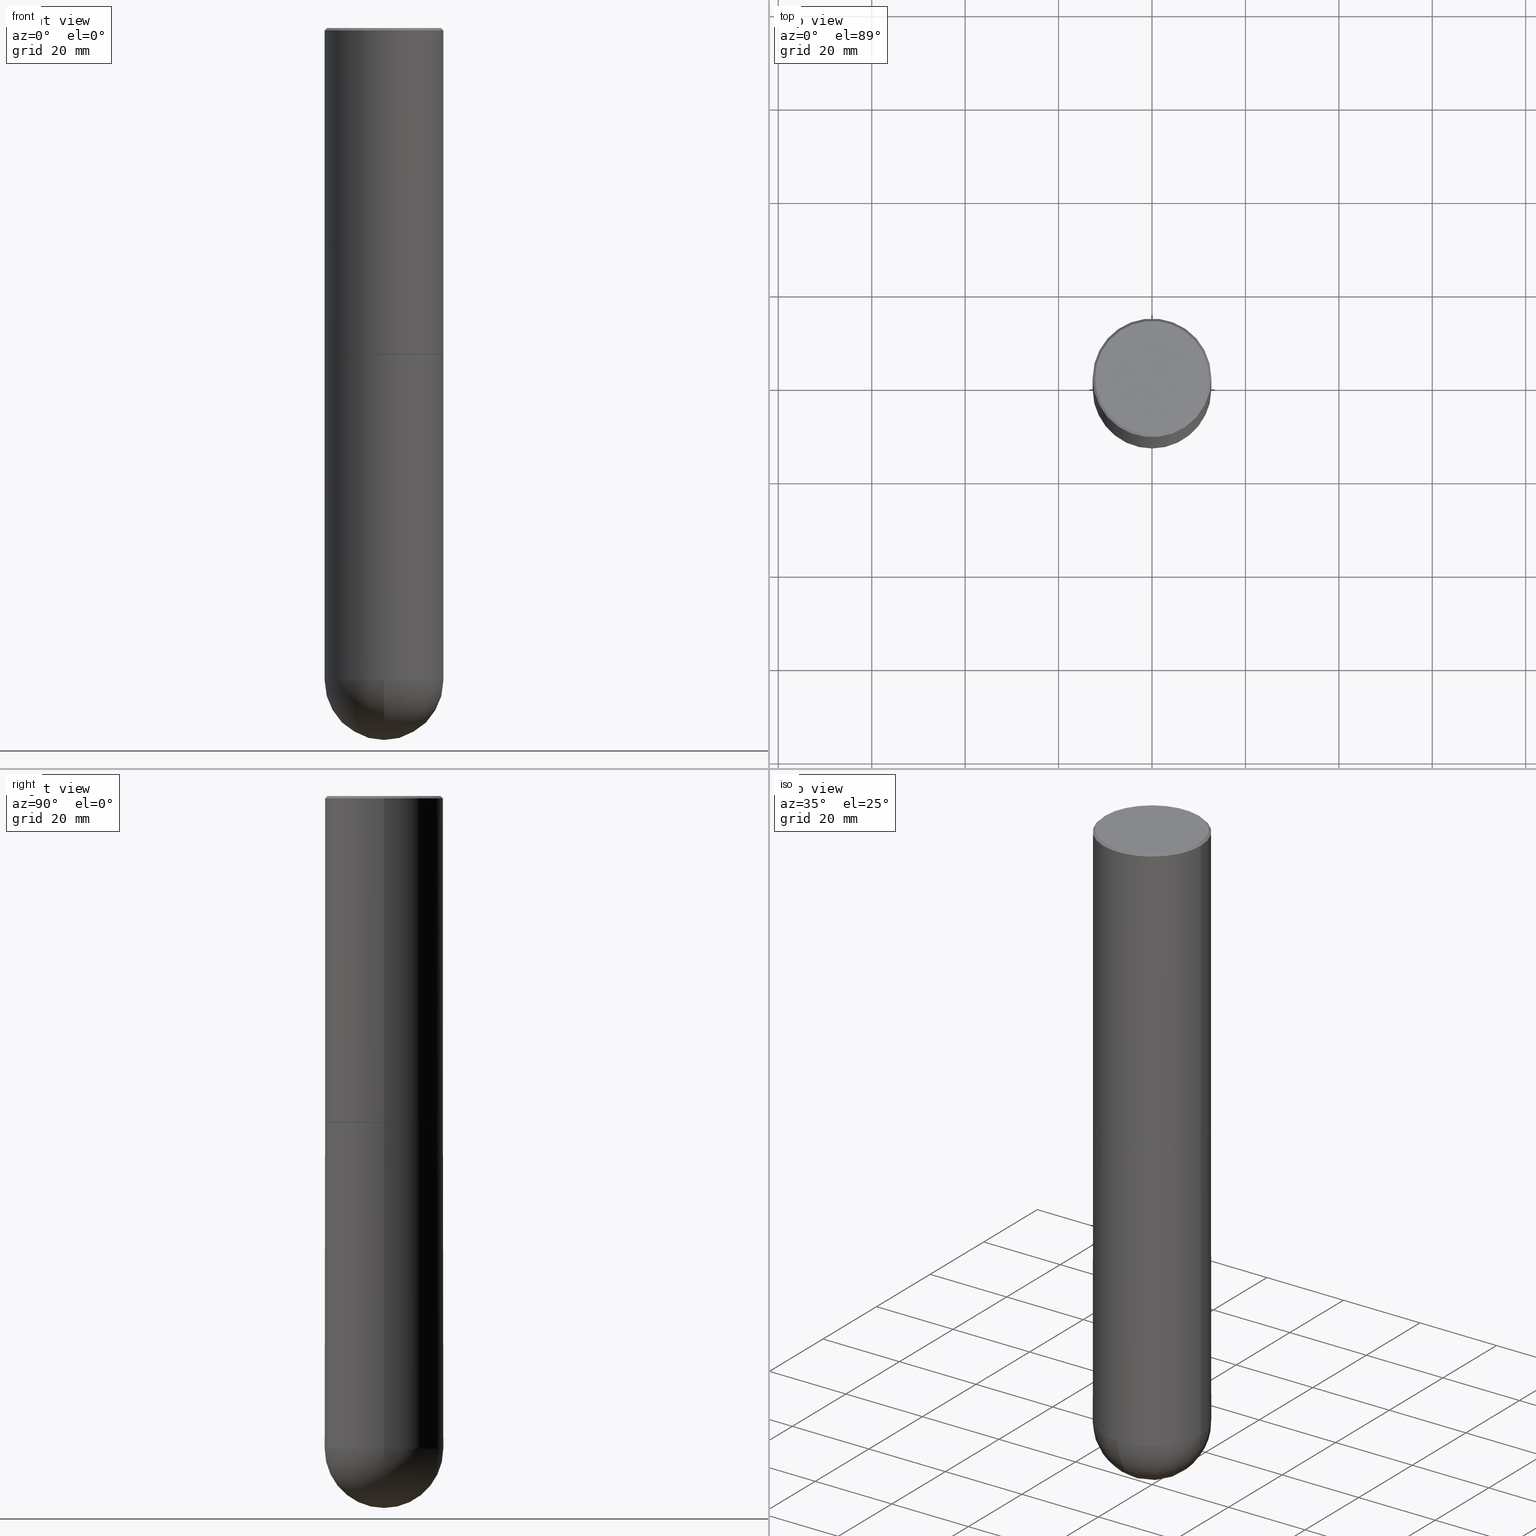
[diagram: canonical four-view strip — front | top / right | iso, engineering-drawing reading convention]
A machine part, canonical four-view strip (front | top / right | iso — engineering-drawing reading convention). The complete STEP part file that produces these views, byte-faithful:
ISO-10303-21;
HEADER;
FILE_DESCRIPTION (( 'STEP AP203' ),
    '1' );
FILE_NAME ('34990.STEP',
    '2024-02-21T18:46:45',
    ( '' ),
    ( '' ),
    'SwSTEP 2.0',
    'SolidWorks 2023',
    '' );
FILE_SCHEMA (( 'CONFIG_CONTROL_DESIGN' ));
ENDSEC;

DATA;
#1 = ORIENTED_EDGE ( 'NONE', *, *, #22, .F. ) ;
#2 = CC_DESIGN_DATE_AND_TIME_ASSIGNMENT ( #333, #275, ( #323 ) ) ;
#3 = AXIS2_PLACEMENT_3D ( 'NONE', #317, #60, #148 ) ;
#4 = LENGTH_MEASURE_WITH_UNIT ( LENGTH_MEASURE( 0.02539999999999999897 ), #69 );
#5 = VECTOR ( 'NONE', #58, 39.37007874015748143 ) ;
#6 = CARTESIAN_POINT ( 'NONE',  ( 3.491481338843265489E-15, 0.4999999999999805711, -5.500000000000002665 ) ) ;
#7 = CARTESIAN_POINT ( 'NONE',  ( 1.345007843401825128E-28, -1.920314736363730603E-14, -5.500000000000000888 ) ) ;
#8 = ORIENTED_EDGE ( 'NONE', *, *, #305, .F. ) ;
#9 = PERSON_AND_ORGANIZATION ( #16, #103 ) ;
#10 = VERTEX_POINT ( 'NONE', #6 ) ;
#11 = CIRCLE ( 'NONE', #284, 0.5000000000000002220 ) ;
#12 = CIRCLE ( 'NONE', #225, 0.4800000000000003708 ) ;
#13 = CARTESIAN_POINT ( 'NONE',  ( 6.722593748202942280E-29, -9.598082200479810007E-15, -2.749000000000000554 ) ) ;
#14 = PERSON_AND_ORGANIZATION_ROLE ( 'creator' ) ;
#15 = DIRECTION ( 'NONE',  ( 1.000000000000000000, -6.982962677686269077E-15, 0.000000000000000000 ) ) ;
#16 = PERSON ( 'UNSPECIFIED', 'UNSPECIFIED', 'UNSPECIFIED', ('UNSPECIFIED'), ('UNSPECIFIED'), ('UNSPECIFIED') ) ;
#17 = APPLICATION_PROTOCOL_DEFINITION ( 'international standard', 'config_control_design', 1994, #53 ) ;
#18 = DIRECTION ( 'NONE',  ( -2.445468806185136597E-29, 3.491481338843145583E-15, 1.000000000000000000 ) ) ;
#19 = EDGE_CURVE ( 'NONE', #197, #299, #345, .T. ) ;
#20 = APPROVAL_ROLE ( '' ) ;
#21 = DIRECTION ( 'NONE',  ( 1.000000000000000000, -6.982962677686267499E-15, 0.000000000000000000 ) ) ;
#22 = EDGE_CURVE ( 'NONE', #355, #329, #74, .T. ) ;
#23 = CARTESIAN_POINT ( 'NONE',  ( -0.5000000000000000000, -1.084964684392748096E-14, -5.500000000000000888 ) ) ;
#24 = DIRECTION ( 'NONE',  ( 1.000000000000000000, -6.982962677686270655E-15, 0.000000000000000000 ) ) ;
#25 = CARTESIAN_POINT ( 'NONE',  ( 0.000000000000000000, 0.000000000000000000, 0.000000000000000000 ) ) ;
#26 = ORIENTED_EDGE ( 'NONE', *, *, #48, .T. ) ;
#27 = CONICAL_SURFACE ( 'NONE', #351, 0.5000000000000000000, 0.7853981633974459475 ) ;
#28 = DIRECTION ( 'NONE',  ( -2.445468806185136597E-29, 3.491481338843145583E-15, 1.000000000000000000 ) ) ;
#29 = ORIENTED_EDGE ( 'NONE', *, *, #122, .T. ) ;
#30 = CARTESIAN_POINT ( 'NONE',  ( -3.552713678800368006E-15, -0.5000000000000194289, -5.499999999999999112 ) ) ;
#31 = AXIS2_PLACEMENT_3D ( 'NONE', #310, #185, #219 ) ;
#32 = DIRECTION ( 'NONE',  ( -2.445468806185136597E-29, 3.491481338843145583E-15, 1.000000000000000000 ) ) ;
#33 = EDGE_LOOP ( 'NONE', ( #404, #180, #411, #40, #331 ) ) ;
#34 = SPHERICAL_SURFACE ( 'NONE', #341, 0.5000000000000000000 ) ;
#35 = CC_DESIGN_PERSON_AND_ORGANIZATION_ASSIGNMENT ( #108, #77, ( #323 ) ) ;
#36 = ORIENTED_EDGE ( 'NONE', *, *, #332, .F. ) ;
#37 = ORIENTED_EDGE ( 'NONE', *, *, #233, .T. ) ;
#38 = CARTESIAN_POINT ( 'NONE',  ( 1.311895865610436840E-28, -1.967732973177735475E-14, -5.500000000000000888 ) ) ;
#39 = LOCAL_TIME ( 13, 46, 45.00000000000000000, #135 ) ;
#40 = ORIENTED_EDGE ( 'NONE', *, *, #143, .F. ) ;
#41 = ADVANCED_FACE ( 'NONE', ( #43 ), #140, .T. ) ;
#42 = DATE_AND_TIME ( #105, #368 ) ;
#43 = FACE_OUTER_BOUND ( 'NONE', #253, .T. ) ;
#44 = DATE_AND_TIME ( #175, #262 ) ;
#45 = DIRECTION ( 'NONE',  ( 1.000000000000000000, -6.982962677686266711E-15, 0.000000000000000000 ) ) ;
#46 = MANIFOLD_SOLID_BREP ( 'Body-Move/Copy2[2]', #120 ) ;
#47 = COORDINATED_UNIVERSAL_TIME_OFFSET ( 5, 0, .BEHIND. ) ;
#48 = EDGE_CURVE ( 'NONE', #313, #10, #59, .T. ) ;
#49 = FACE_OUTER_BOUND ( 'NONE', #278, .T. ) ;
#50 = APPROVAL_ROLE ( '' ) ;
#51 = FACE_OUTER_BOUND ( 'NONE', #357, .T. ) ;
#52 = PLANE ( 'NONE',  #187 ) ;
#53 = APPLICATION_CONTEXT ( 'configuration controlled 3d designs of mechanical parts and assemblies' ) ;
#54 = CC_DESIGN_APPROVAL ( #132, ( #315 ) ) ;
#55 = EDGE_CURVE ( 'NONE', #221, #329, #142, .T. ) ;
#56 = FACE_OUTER_BOUND ( 'NONE', #134, .T. ) ;
#57 = EDGE_LOOP ( 'NONE', ( #98, #127 ) ) ;
#58 = DIRECTION ( 'NONE',  ( 0.7071067811867165487, -2.468850131084027659E-15, 0.7071067811863784858 ) ) ;
#59 = CIRCLE ( 'NONE', #208, 0.5000000000000000000 ) ;
#60 = DIRECTION ( 'NONE',  ( -2.445468806185136597E-29, 3.491481338843145583E-15, 1.000000000000000000 ) ) ;
#61 = ADVANCED_FACE ( 'NONE', ( #76 ), #238, .F. ) ;
#62 = ADVANCED_FACE ( 'NONE', ( #49 ), #104, .T. ) ;
#63 = DIRECTION ( 'NONE',  ( -2.445468806185136877E-29, 3.491481338843145188E-15, 1.000000000000000000 ) ) ;
#64 = ORIENTED_EDGE ( 'NONE', *, *, #186, .F. ) ;
#65 = VECTOR ( 'NONE', #402, 39.37007874015748143 ) ;
#66 = VECTOR ( 'NONE', #63, 39.37007874015748143 ) ;
#67 = PLANE ( 'NONE',  #407 ) ;
#68 = ORIENTED_EDGE ( 'NONE', *, *, #143, .T. ) ;
#69 =( LENGTH_UNIT ( ) NAMED_UNIT ( * ) SI_UNIT ( $, .METRE. ) );
#70 = VERTEX_POINT ( 'NONE', #171 ) ;
#71 = FACE_OUTER_BOUND ( 'NONE', #33, .T. ) ;
#72 = ORIENTED_EDGE ( 'NONE', *, *, #247, .T. ) ;
#73 = CIRCLE ( 'NONE', #198, 0.5000000000000000000 ) ;
#74 = LINE ( 'NONE', #230, #266 ) ;
#75 = EDGE_CURVE ( 'NONE', #329, #221, #86, .T. ) ;
#76 = FACE_OUTER_BOUND ( 'NONE', #268, .T. ) ;
#77 = PERSON_AND_ORGANIZATION_ROLE ( 'classification_officer' ) ;
#78 = CARTESIAN_POINT ( 'NONE',  ( 6.725039217009125641E-29, -9.601573681818653015E-15, -2.750000000000000444 ) ) ;
#79 = AXIS2_PLACEMENT_3D ( 'NONE', #211, #106, #370 ) ;
#80 = SECURITY_CLASSIFICATION_LEVEL ( 'unclassified' ) ;
#81 = LOCAL_TIME ( 13, 46, 45.00000000000000000, #394 ) ;
#82 = CARTESIAN_POINT ( 'NONE',  ( 4.890937612370299433E-31, -6.982962677686328587E-17, -0.02000000000000010797 ) ) ;
#83 = COORDINATED_UNIVERSAL_TIME_OFFSET ( 5, 0, .BEHIND. ) ;
#84 = DIRECTION ( 'NONE',  ( 1.000000000000000000, -6.982962677686266711E-15, 4.878011538933546479E-29 ) ) ;
#85 = EDGE_CURVE ( 'NONE', #167, #318, #96, .T. ) ;
#86 = CIRCLE ( 'NONE', #130, 0.5000000000000000000 ) ;
#87 = ORIENTED_EDGE ( 'NONE', *, *, #55, .F. ) ;
#88 = CARTESIAN_POINT ( 'NONE',  ( 8.872737021849368446E-45, -1.266791694823380303E-30, -3.628235616585349371E-16 ) ) ;
#89 = ADVANCED_FACE ( 'NONE', ( #51 ), #340, .T. ) ;
#90 = DIRECTION ( 'NONE',  ( 2.445468806185136597E-29, -3.491481338843145583E-15, -1.000000000000000000 ) ) ;
#91 = DIRECTION ( 'NONE',  ( 1.000000000000000000, -6.982962677686266711E-15, 0.000000000000000000 ) ) ;
#92 =( NAMED_UNIT ( * ) SI_UNIT ( $, .STERADIAN. ) SOLID_ANGLE_UNIT ( ) );
#93 = ORIENTED_EDGE ( 'NONE', *, *, #247, .F. ) ;
#94 = LINE ( 'NONE', #229, #386 ) ;
#95 = EDGE_LOOP ( 'NONE', ( #188, #37, #297, #8 ) ) ;
#96 = CIRCLE ( 'NONE', #367, 0.4800000000000003708 ) ;
#97 = DIRECTION ( 'NONE',  ( 1.000000000000000000, -6.982962677686267499E-15, 4.876176775795935793E-29 ) ) ;
#98 = ORIENTED_EDGE ( 'NONE', *, *, #125, .T. ) ;
#99 = VERTEX_POINT ( 'NONE', #173 ) ;
#100 = CARTESIAN_POINT ( 'NONE',  ( -0.5000000000000002220, -1.281242234827832765E-15, -2.749000000000000554 ) ) ;
#101 = ORIENTED_EDGE ( 'NONE', *, *, #146, .F. ) ;
#102 = AXIS2_PLACEMENT_3D ( 'NONE', #246, #18, #240 ) ;
#103 = ORGANIZATION ( 'UNSPECIFIED', 'UNSPECIFIED', '' ) ;
#104 = SPHERICAL_SURFACE ( 'NONE', #260, 0.5000000000000000000 ) ;
#105 = CALENDAR_DATE ( 2024, 21, 2 ) ;
#106 = DIRECTION ( 'NONE',  ( 2.438088387897960049E-29, -3.491481338843145188E-15, -1.000000000000000000 ) ) ;
#107 = ADVANCED_FACE ( 'NONE', ( #307 ), #52, .F. ) ;
#108 = PERSON_AND_ORGANIZATION ( #16, #103 ) ;
#109 = LINE ( 'NONE', #301, #350 ) ;
#110 = PERSON_AND_ORGANIZATION ( #16, #103 ) ;
#111 = CIRCLE ( 'NONE', #150, 0.5000000000000000000 ) ;
#112 = CARTESIAN_POINT ( 'NONE',  ( 0.5000000000000000000, -3.491481338843133355E-15, 2.438088387897967896E-29 ) ) ;
#113 = PERSON_AND_ORGANIZATION ( #16, #103 ) ;
#114 = EDGE_CURVE ( 'NONE', #355, #383, #321, .T. ) ;
#115 = DIRECTION ( 'NONE',  ( -2.445468806185136597E-29, 3.491481338843145583E-15, 1.000000000000000000 ) ) ;
#116 = CARTESIAN_POINT ( 'NONE',  ( 1.311895865610436840E-28, -1.967732973177735475E-14, -5.500000000000000888 ) ) ;
#117 = AXIS2_PLACEMENT_3D ( 'NONE', #214, #136, #91 ) ;
#118 = APPROVAL ( #338, 'UNSPECIFIED' ) ;
#119 = DIMENSIONAL_EXPONENTS ( 1.000000000000000000, 0.000000000000000000, 0.000000000000000000, 0.000000000000000000, 0.000000000000000000, 0.000000000000000000, 0.000000000000000000 ) ;
#120 = CLOSED_SHELL ( 'NONE', ( #162, #408, #41, #265, #254, #89, #107, #61 ) ) ;
#121 = DIRECTION ( 'NONE',  ( -1.000000000000000000, 7.105427357601001070E-15, -4.926315508542082329E-29 ) ) ;
#122 = EDGE_CURVE ( 'NONE', #318, #329, #109, .T. ) ;
#123 = AXIS2_PLACEMENT_3D ( 'NONE', #116, #121, #353 ) ;
#124 = APPROVAL_PERSON_ORGANIZATION ( #110, #132, #20 ) ;
#125 = EDGE_CURVE ( 'NONE', #99, #320, #374, .T. ) ;
#126 = DIRECTION ( 'NONE',  ( -2.445468806185136597E-29, 3.491481338843145583E-15, 1.000000000000000000 ) ) ;
#127 = ORIENTED_EDGE ( 'NONE', *, *, #154, .T. ) ;
#128 = CARTESIAN_POINT ( 'NONE',  ( 0.5000000000000000000, -1.789384186157111367E-14, -5.500000000000000888 ) ) ;
#129 = ORIENTED_EDGE ( 'NONE', *, *, #337, .F. ) ;
#130 = AXIS2_PLACEMENT_3D ( 'NONE', #304, #336, #45 ) ;
#131 = ORIENTED_EDGE ( 'NONE', *, *, #19, .T. ) ;
#132 = APPROVAL ( #139, 'UNSPECIFIED' ) ;
#133 = CARTESIAN_POINT ( 'NONE',  ( -0.4989999999999999991, -6.055965430375752305E-15, -2.750000000000000444 ) ) ;
#134 = EDGE_LOOP ( 'NONE', ( #216, #168, #101, #224 ) ) ;
#135 = COORDINATED_UNIVERSAL_TIME_OFFSET ( 5, 0, .BEHIND. ) ;
#136 = DIRECTION ( 'NONE',  ( -2.445468806185136597E-29, 3.491481338843145583E-15, 1.000000000000000000 ) ) ;
#137 = APPROVAL_PERSON_ORGANIZATION ( #9, #248, #50 ) ;
#138 = APPROVAL_ROLE ( '' ) ;
#139 = APPROVAL_STATUS ( 'not_yet_approved' ) ;
#140 = CONICAL_SURFACE ( 'NONE', #206, 0.5000000000000000000, 0.7853981633974459475 ) ;
#141 = DIRECTION ( 'NONE',  ( -1.000000000000000000, 6.982962677686266711E-15, 0.000000000000000000 ) ) ;
#142 = CIRCLE ( 'NONE', #196, 0.5000000000000000000 ) ;
#143 = EDGE_CURVE ( 'NONE', #381, #99, #366, .T. ) ;
#144 = PERSON_AND_ORGANIZATION_ROLE ( 'design_supplier' ) ;
#145 = CARTESIAN_POINT ( 'NONE',  ( 0.5000000000000000000, -3.500078625662629079E-15, -0.02000000000000010797 ) ) ;
#146 = EDGE_CURVE ( 'NONE', #383, #355, #11, .T. ) ;
#147 = CARTESIAN_POINT ( 'NONE',  ( 0.4989999999999999991, -1.308607205798410036E-14, -2.750000000000000444 ) ) ;
#148 = DIRECTION ( 'NONE',  ( 1.000000000000000000, -6.982962677686269077E-15, 0.000000000000000000 ) ) ;
#149 = EDGE_CURVE ( 'NONE', #167, #221, #269, .T. ) ;
#150 = AXIS2_PLACEMENT_3D ( 'NONE', #160, #126, #322 ) ;
#151 = CARTESIAN_POINT ( 'NONE',  ( 1.345007843401825128E-28, -1.920314736363730603E-14, -5.500000000000000888 ) ) ;
#152 = AXIS2_PLACEMENT_3D ( 'NONE', #362, #288, #159 ) ;
#153 = CLOSED_SHELL ( 'NONE', ( #354, #295, #62, #330, #174 ) ) ;
#154 = EDGE_CURVE ( 'NONE', #320, #99, #347, .T. ) ;
#155 = EDGE_LOOP ( 'NONE', ( #1, #334, #373, #261 ) ) ;
#156 = AXIS2_PLACEMENT_3D ( 'NONE', #377, #28, #281 ) ;
#157 = CIRCLE ( 'NONE', #285, 0.5000000000000000000 ) ;
#158 = CARTESIAN_POINT ( 'NONE',  ( 0.5000000000000002220, -1.308956353932294494E-14, -2.749000000000000554 ) ) ;
#159 = DIRECTION ( 'NONE',  ( 1.000000000000000000, -6.982962677686270655E-15, 0.000000000000000000 ) ) ;
#160 = CARTESIAN_POINT ( 'NONE',  ( 1.345007843401825128E-28, -1.920314736363730603E-14, -5.500000000000000888 ) ) ;
#161 = ORIENTED_EDGE ( 'NONE', *, *, #149, .T. ) ;
#162 = ADVANCED_FACE ( 'NONE', ( #56 ), #405, .T. ) ;
#163 = CARTESIAN_POINT ( 'NONE',  ( 0.000000000000000000, 0.000000000000000000, 0.000000000000000000 ) ) ;
#164 = EDGE_LOOP ( 'NONE', ( #311, #280, #87, #129 ) ) ;
#165 = AXIS2_PLACEMENT_3D ( 'NONE', #166, #32, #291 ) ;
#166 = CARTESIAN_POINT ( 'NONE',  ( 6.725039217009125641E-29, -9.601573681818653015E-15, -2.750000000000000444 ) ) ;
#167 = VERTEX_POINT ( 'NONE', #217 ) ;
#168 = ORIENTED_EDGE ( 'NONE', *, *, #332, .T. ) ;
#169 = PERSON_AND_ORGANIZATION_ROLE ( 'creator' ) ;
#170 = DIRECTION ( 'NONE',  ( -2.445468806185136597E-29, 3.491481338843145583E-15, 1.000000000000000000 ) ) ;
#171 = CARTESIAN_POINT ( 'NONE',  ( 0.4989999999999999991, -1.308607205798410036E-14, -2.750000000000000444 ) ) ;
#172 = DATE_AND_TIME ( #210, #81 ) ;
#173 = CARTESIAN_POINT ( 'NONE',  ( 0.5000000000000000000, -1.309305502066178637E-14, -2.750000000000000444 ) ) ;
#174 = ADVANCED_FACE ( 'NONE', ( #179 ), #252, .T. ) ;
#175 = CALENDAR_DATE ( 2024, 21, 2 ) ;
#176 = DIRECTION ( 'NONE',  ( -0.7071067811865459074, 2.468850131082239706E-15, -0.7071067811865492381 ) ) ;
#177 = MANIFOLD_SOLID_BREP ( 'Body-Move/Copy2[1]', #153 ) ;
#178 = AXIS2_PLACEMENT_3D ( 'NONE', #205, #243, #369 ) ;
#179 = FACE_OUTER_BOUND ( 'NONE', #264, .T. ) ;
#180 = ORIENTED_EDGE ( 'NONE', *, *, #384, .T. ) ;
#181 = FACE_OUTER_BOUND ( 'NONE', #155, .T. ) ;
#182 = DIRECTION ( 'NONE',  ( 1.000000000000000000, -6.982962677686267499E-15, 4.876176775795935793E-29 ) ) ;
#183 = CIRCLE ( 'NONE', #3, 0.4989999999999999991 ) ;
#184 = AXIS2_PLACEMENT_3D ( 'NONE', #163, #412, #227 ) ;
#185 = DIRECTION ( 'NONE',  ( -2.445468806185136597E-29, 3.491481338843145583E-15, 1.000000000000000000 ) ) ;
#186 = EDGE_CURVE ( 'NONE', #381, #10, #73, .T. ) ;
#187 = AXIS2_PLACEMENT_3D ( 'NONE', #78, #397, #276 ) ;
#188 = ORIENTED_EDGE ( 'NONE', *, *, #48, .F. ) ;
#189 = AXIS2_PLACEMENT_3D ( 'NONE', #25, #406, #182 ) ;
#190 = FACE_OUTER_BOUND ( 'NONE', #95, .T. ) ;
#191 = ORIENTED_EDGE ( 'NONE', *, *, #85, .F. ) ;
#192 =( CONVERSION_BASED_UNIT ( 'INCH', #4 ) LENGTH_UNIT ( ) NAMED_UNIT ( #119 ) );
#193 = CC_DESIGN_DATE_AND_TIME_ASSIGNMENT ( #172, #308, ( #400 ) ) ;
#194 = ORIENTED_EDGE ( 'NONE', *, *, #114, .F. ) ;
#195 = CYLINDRICAL_SURFACE ( 'NONE', #209, 0.5000000000000001110 ) ;
#196 = AXIS2_PLACEMENT_3D ( 'NONE', #82, #395, #372 ) ;
#197 = VERTEX_POINT ( 'NONE', #23 ) ;
#198 = AXIS2_PLACEMENT_3D ( 'NONE', #151, #349, #24 ) ;
#199 = CIRCLE ( 'NONE', #165, 0.4989999999999999991 ) ;
#200 = ORIENTED_EDGE ( 'NONE', *, *, #398, .F. ) ;
#201 = CC_DESIGN_PERSON_AND_ORGANIZATION_ASSIGNMENT ( #271, #342, ( #302 ) ) ;
#202 = APPLICATION_PROTOCOL_DEFINITION ( 'international standard', 'config_control_design', 1994, #328 ) ;
#203 = CARTESIAN_POINT ( 'NONE',  ( 1.311895865610436840E-28, -1.967732973177735475E-14, -5.500000000000000888 ) ) ;
#204 = UNCERTAINTY_MEASURE_WITH_UNIT (LENGTH_MEASURE( 1.000000000000000082E-05 ), #192, 'distance_accuracy_value', 'NONE');
#205 = CARTESIAN_POINT ( 'NONE',  ( 0.000000000000000000, 0.000000000000000000, 0.000000000000000000 ) ) ;
#206 = AXIS2_PLACEMENT_3D ( 'NONE', #258, #339, #141 ) ;
#207 = DIRECTION ( 'NONE',  ( 1.000000000000000000, -6.982962677686267499E-15, 0.000000000000000000 ) ) ;
#208 = AXIS2_PLACEMENT_3D ( 'NONE', #203, #273, #399 ) ;
#209 = AXIS2_PLACEMENT_3D ( 'NONE', #283, #388, #97 ) ;
#210 = CALENDAR_DATE ( 2024, 21, 2 ) ;
#211 = CARTESIAN_POINT ( 'NONE',  ( 3.351822085289410309E-15, 0.4800000000000003708, -1.857322823473978811E-15 ) ) ;
#212 = PERSON_AND_ORGANIZATION ( #16, #103 ) ;
#213 = DIRECTION ( 'NONE',  ( -1.000000000000000000, 6.982962677686265922E-15, -4.883557194083113462E-29 ) ) ;
#214 = CARTESIAN_POINT ( 'NONE',  ( 6.725039217009125641E-29, -9.601573681818653015E-15, -2.750000000000000444 ) ) ;
#215 = LINE ( 'NONE', #147, #5 ) ;
#216 = ORIENTED_EDGE ( 'NONE', *, *, #376, .T. ) ;
#217 = CARTESIAN_POINT ( 'NONE',  ( 0.4800000000000003708, -3.396558832296484071E-15, -3.628235616585113699E-16 ) ) ;
#218 =( GEOMETRIC_REPRESENTATION_CONTEXT ( 3 ) GLOBAL_UNCERTAINTY_ASSIGNED_CONTEXT ( ( #204 ) ) GLOBAL_UNIT_ASSIGNED_CONTEXT ( ( #192, #319, #92 ) ) REPRESENTATION_CONTEXT ( 'NONE', 'WORKASPACE' ) );
#219 = DIRECTION ( 'NONE',  ( 1.000000000000000000, -6.982962677686266711E-15, 4.876176775795935793E-29 ) ) ;
#220 = CARTESIAN_POINT ( 'NONE',  ( -0.4989999999999999991, -6.050666976027529902E-15, -2.750000000000000444 ) ) ;
#221 = VERTEX_POINT ( 'NONE', #403 ) ;
#222 = EDGE_CURVE ( 'NONE', #326, #70, #183, .T. ) ;
#223 = LINE ( 'NONE', #410, #66 ) ;
#224 = ORIENTED_EDGE ( 'NONE', *, *, #251, .F. ) ;
#225 = AXIS2_PLACEMENT_3D ( 'NONE', #88, #250, #375 ) ;
#226 = PRODUCT_RELATED_PRODUCT_CATEGORY ( 'detail', '', ( #302 ) ) ;
#227 = DIRECTION ( 'NONE',  ( 1.000000000000000000, -6.982962677686266711E-15, 4.876176775795935793E-29 ) ) ;
#228 = ORIENTED_EDGE ( 'NONE', *, *, #55, .T. ) ;
#229 = CARTESIAN_POINT ( 'NONE',  ( 0.5000000000000001110, -3.491481338843134539E-15, 2.438088387897968457E-29 ) ) ;
#230 = CARTESIAN_POINT ( 'NONE',  ( -0.5000000000000001110, 3.552713678800501718E-15, -2.459467545127453732E-29 ) ) ;
#231 = FACE_OUTER_BOUND ( 'NONE', #164, .T. ) ;
#232 = ORIENTED_EDGE ( 'NONE', *, *, #222, .T. ) ;
#233 = EDGE_CURVE ( 'NONE', #313, #299, #241, .T. ) ;
#234 = CALENDAR_DATE ( 2024, 21, 2 ) ;
#235 = DIRECTION ( 'NONE',  ( -2.445468806185136597E-29, 3.491481338843145583E-15, 1.000000000000000000 ) ) ;
#236 = APPROVAL_DATE_TIME ( #42, #132 ) ;
#237 = PRODUCT_DEFINITION_SHAPE ( 'NONE', 'NONE',  #400 ) ;
#238 = PLANE ( 'NONE',  #79 ) ;
#239 = APPROVAL_DATE_TIME ( #245, #248 ) ;
#240 = DIRECTION ( 'NONE',  ( 1.000000000000000000, -6.982962677686266711E-15, 0.000000000000000000 ) ) ;
#241 = CIRCLE ( 'NONE', #123, 0.5000000000000000000 ) ;
#242 = VECTOR ( 'NONE', #263, 39.37007874015748143 ) ;
#243 = DIRECTION ( 'NONE',  ( 0.000000000000000000, 0.000000000000000000, 1.000000000000000000 ) ) ;
#244 = DIRECTION ( 'NONE',  ( -2.445468806185136877E-29, 3.491481338843145188E-15, 1.000000000000000000 ) ) ;
#245 = DATE_AND_TIME ( #234, #39 ) ;
#246 = CARTESIAN_POINT ( 'NONE',  ( 6.725039217009125641E-29, -9.601573681818653015E-15, -2.750000000000000444 ) ) ;
#247 = EDGE_CURVE ( 'NONE', #318, #167, #12, .T. ) ;
#248 = APPROVAL ( #401, 'UNSPECIFIED' ) ;
#249 = CC_DESIGN_APPROVAL ( #248, ( #323 ) ) ;
#250 = DIRECTION ( 'NONE',  ( -2.445468806185136597E-29, 3.491481338843145583E-15, 1.000000000000000000 ) ) ;
#251 = EDGE_CURVE ( 'NONE', #70, #383, #215, .T. ) ;
#252 = CYLINDRICAL_SURFACE ( 'NONE', #31, 0.5000000000000000000 ) ;
#253 = EDGE_LOOP ( 'NONE', ( #191, #161, #228, #324 ) ) ;
#254 = ADVANCED_FACE ( 'NONE', ( #181 ), #312, .T. ) ;
#255 = CARTESIAN_POINT ( 'NONE',  ( -0.5000000000000000000, -1.084964684392747780E-14, -2.750000000000000444 ) ) ;
#256 = ORIENTED_EDGE ( 'NONE', *, *, #376, .F. ) ;
#257 = DIRECTION ( 'NONE',  ( 6.982962677686265922E-15, 1.000000000000000000, -4.370956789862821150E-15 ) ) ;
#258 = CARTESIAN_POINT ( 'NONE',  ( 4.890937612370299433E-31, -6.982962677686328587E-17, -0.02000000000000010797 ) ) ;
#259 = DIRECTION ( 'NONE',  ( 1.000000000000000000, -6.982962677686270655E-15, 0.000000000000000000 ) ) ;
#260 = AXIS2_PLACEMENT_3D ( 'NONE', #393, #213, #343 ) ;
#261 = ORIENTED_EDGE ( 'NONE', *, *, #75, .F. ) ;
#262 = LOCAL_TIME ( 13, 46, 45.00000000000000000, #47 ) ;
#263 = DIRECTION ( 'NONE',  ( -0.7071067811867165487, 7.493145998870964739E-15, 0.7071067811863784858 ) ) ;
#264 = EDGE_LOOP ( 'NONE', ( #358, #131, #290, #68, #286 ) ) ;
#265 = ADVANCED_FACE ( 'NONE', ( #316 ), #27, .T. ) ;
#266 = VECTOR ( 'NONE', #360, 39.37007874015748143 ) ;
#267 = DIRECTION ( 'NONE',  ( -2.445468806185136597E-29, 3.491481338843145583E-15, 1.000000000000000000 ) ) ;
#268 = EDGE_LOOP ( 'NONE', ( #72, #389 ) ) ;
#269 = LINE ( 'NONE', #145, #65 ) ;
#270 = CC_DESIGN_APPROVAL ( #118, ( #400 ) ) ;
#271 = PERSON_AND_ORGANIZATION ( #16, #103 ) ;
#272 = PERSON_AND_ORGANIZATION ( #16, #103 ) ;
#273 = DIRECTION ( 'NONE',  ( 1.000000000000000000, -6.982962677686265922E-15, 4.883557194083112340E-29 ) ) ;
#274 = CC_DESIGN_SECURITY_CLASSIFICATION ( #323, ( #315 ) ) ;
#275 = DATE_TIME_ROLE ( 'classification_date' ) ;
#276 = DIRECTION ( 'NONE',  ( 1.000000000000000000, -6.982962677686265922E-15, 4.876176775795935793E-29 ) ) ;
#277 = CC_DESIGN_PERSON_AND_ORGANIZATION_ASSIGNMENT ( #113, #14, ( #400 ) ) ;
#278 = EDGE_LOOP ( 'NONE', ( #282, #26, #64, #200 ) ) ;
#279 = LOCAL_TIME ( 13, 46, 45.00000000000000000, #300 ) ;
#280 = ORIENTED_EDGE ( 'NONE', *, *, #22, .T. ) ;
#281 = DIRECTION ( 'NONE',  ( 1.000000000000000000, -6.982962677686269077E-15, 0.000000000000000000 ) ) ;
#282 = ORIENTED_EDGE ( 'NONE', *, *, #233, .F. ) ;
#283 = CARTESIAN_POINT ( 'NONE',  ( 0.000000000000000000, 0.000000000000000000, 0.000000000000000000 ) ) ;
#284 = AXIS2_PLACEMENT_3D ( 'NONE', #13, #235, #21 ) ;
#285 = AXIS2_PLACEMENT_3D ( 'NONE', #7, #267, #259 ) ;
#286 = ORIENTED_EDGE ( 'NONE', *, *, #154, .F. ) ;
#287 = DIRECTION ( 'NONE',  ( 2.438088387897960049E-29, -3.491481338843145188E-15, -1.000000000000000000 ) ) ;
#288 = DIRECTION ( 'NONE',  ( -2.445468806185136597E-29, 3.491481338843145583E-15, 1.000000000000000000 ) ) ;
#289 = DIRECTION ( 'NONE',  ( -1.000000000000000000, 6.982962677686265922E-15, -4.883557194083113462E-29 ) ) ;
#290 = ORIENTED_EDGE ( 'NONE', *, *, #398, .T. ) ;
#291 = DIRECTION ( 'NONE',  ( 1.000000000000000000, -6.982962677686269077E-15, 0.000000000000000000 ) ) ;
#292 = AXIS2_PLACEMENT_3D ( 'NONE', #363, #170, #15 ) ;
#293 = EDGE_LOOP ( 'NONE', ( #391, #93, #29, #348 ) ) ;
#294 = APPROVAL_PERSON_ORGANIZATION ( #272, #118, #138 ) ;
#295 = ADVANCED_FACE ( 'NONE', ( #190 ), #34, .T. ) ;
#296 = DIRECTION ( 'NONE',  ( -1.000000000000000000, 6.982962677686265922E-15, -4.876176775795935793E-29 ) ) ;
#297 = ORIENTED_EDGE ( 'NONE', *, *, #19, .F. ) ;
#298 = CC_DESIGN_PERSON_AND_ORGANIZATION_ASSIGNMENT ( #396, #169, ( #315 ) ) ;
#299 = VERTEX_POINT ( 'NONE', #30 ) ;
#300 = COORDINATED_UNIVERSAL_TIME_OFFSET ( 5, 0, .BEHIND. ) ;
#301 = CARTESIAN_POINT ( 'NONE',  ( -0.5000000000000000000, 3.421651712066270057E-15, -0.02000000000000010797 ) ) ;
#302 = PRODUCT ( '34990', '34990', '', ( #344 ) ) ;
#303 = APPROVAL_DATE_TIME ( #44, #118 ) ;
#304 = CARTESIAN_POINT ( 'NONE',  ( 4.890937612370299433E-31, -6.982962677686328587E-17, -0.02000000000000010797 ) ) ;
#305 = EDGE_CURVE ( 'NONE', #10, #197, #111, .T. ) ;
#306 = CALENDAR_DATE ( 2024, 21, 2 ) ;
#307 = FACE_OUTER_BOUND ( 'NONE', #379, .T. ) ;
#308 = DATE_TIME_ROLE ( 'creation_date' ) ;
#309 = DIRECTION ( 'NONE',  ( -2.445468806185136597E-29, 3.491481338843145583E-15, 1.000000000000000000 ) ) ;
#310 = CARTESIAN_POINT ( 'NONE',  ( 0.000000000000000000, 0.000000000000000000, 0.000000000000000000 ) ) ;
#311 = ORIENTED_EDGE ( 'NONE', *, *, #146, .T. ) ;
#312 = CYLINDRICAL_SURFACE ( 'NONE', #189, 0.5000000000000001110 ) ;
#313 = VERTEX_POINT ( 'NONE', #361 ) ;
#314 = AXIS2_PLACEMENT_3D ( 'NONE', #346, #309, #207 ) ;
#315 = PRODUCT_DEFINITION_FORMATION_WITH_SPECIFIED_SOURCE ( 'ANY', '', #302, .NOT_KNOWN. ) ;
#316 = FACE_OUTER_BOUND ( 'NONE', #293, .T. ) ;
#317 = CARTESIAN_POINT ( 'NONE',  ( 6.725039217009125641E-29, -9.601573681818653015E-15, -2.750000000000000444 ) ) ;
#318 = VERTEX_POINT ( 'NONE', #356 ) ;
#319 =( NAMED_UNIT ( * ) PLANE_ANGLE_UNIT ( ) SI_UNIT ( $, .RADIAN. ) );
#320 = VERTEX_POINT ( 'NONE', #255 ) ;
#321 = CIRCLE ( 'NONE', #314, 0.5000000000000002220 ) ;
#322 = DIRECTION ( 'NONE',  ( 1.000000000000000000, -6.982962677686270655E-15, 0.000000000000000000 ) ) ;
#323 = SECURITY_CLASSIFICATION ( '', '', #80 ) ;
#324 = ORIENTED_EDGE ( 'NONE', *, *, #122, .F. ) ;
#325 = CARTESIAN_POINT ( 'NONE',  ( -0.5000000000000000000, 3.421651712066270057E-15, -0.02000000000000010797 ) ) ;
#326 = VERTEX_POINT ( 'NONE', #220 ) ;
#327 = CYLINDRICAL_SURFACE ( 'NONE', #184, 0.5000000000000000000 ) ;
#328 = APPLICATION_CONTEXT ( 'configuration controlled 3d designs of mechanical parts and assemblies' ) ;
#329 = VERTEX_POINT ( 'NONE', #325 ) ;
#330 = ADVANCED_FACE ( 'NONE', ( #359 ), #67, .F. ) ;
#331 = ORIENTED_EDGE ( 'NONE', *, *, #186, .T. ) ;
#332 = EDGE_CURVE ( 'NONE', #326, #355, #385, .T. ) ;
#333 = DATE_AND_TIME ( #306, #279 ) ;
#334 = ORIENTED_EDGE ( 'NONE', *, *, #114, .T. ) ;
#335 = ADVANCED_BREP_SHAPE_REPRESENTATION ( '34990', ( #177, #46, #178 ), #218 ) ;
#336 = DIRECTION ( 'NONE',  ( -2.445468806185136597E-29, 3.491481338843145583E-15, 1.000000000000000000 ) ) ;
#337 = EDGE_CURVE ( 'NONE', #383, #221, #94, .T. ) ;
#338 = APPROVAL_STATUS ( 'not_yet_approved' ) ;
#339 = DIRECTION ( 'NONE',  ( 2.445468806185136597E-29, -3.491481338843145583E-15, -1.000000000000000000 ) ) ;
#340 = CONICAL_SURFACE ( 'NONE', #292, 0.4989999999999999991, 0.7853981633976873100 ) ;
#341 = AXIS2_PLACEMENT_3D ( 'NONE', #38, #289, #257 ) ;
#342 = PERSON_AND_ORGANIZATION_ROLE ( 'design_owner' ) ;
#343 = DIRECTION ( 'NONE',  ( 6.982962677686265922E-15, 1.000000000000000000, -4.370956789862821150E-15 ) ) ;
#344 = MECHANICAL_CONTEXT ( 'NONE', #328, 'mechanical' ) ;
#345 = CIRCLE ( 'NONE', #152, 0.5000000000000000000 ) ;
#346 = CARTESIAN_POINT ( 'NONE',  ( 6.722593748202942280E-29, -9.598082200479810007E-15, -2.749000000000000554 ) ) ;
#347 = CIRCLE ( 'NONE', #117, 0.5000000000000000000 ) ;
#348 = ORIENTED_EDGE ( 'NONE', *, *, #75, .T. ) ;
#349 = DIRECTION ( 'NONE',  ( -2.445468806185136597E-29, 3.491481338843145583E-15, 1.000000000000000000 ) ) ;
#350 = VECTOR ( 'NONE', #176, 39.37007874015748143 ) ;
#351 = AXIS2_PLACEMENT_3D ( 'NONE', #378, #90, #409 ) ;
#352 = ORIENTED_EDGE ( 'NONE', *, *, #222, .F. ) ;
#353 = DIRECTION ( 'NONE',  ( -7.105427357601001070E-15, -1.000000000000000000, 0.000000000000000000 ) ) ;
#354 = ADVANCED_FACE ( 'NONE', ( #71 ), #327, .T. ) ;
#355 = VERTEX_POINT ( 'NONE', #100 ) ;
#356 = CARTESIAN_POINT ( 'NONE',  ( -0.4800000000000003708, 3.386736898677839197E-15, -3.628235616585585043E-16 ) ) ;
#357 = EDGE_LOOP ( 'NONE', ( #36, #232, #387, #194 ) ) ;
#358 = ORIENTED_EDGE ( 'NONE', *, *, #384, .F. ) ;
#359 = FACE_OUTER_BOUND ( 'NONE', #57, .T. ) ;
#360 = DIRECTION ( 'NONE',  ( -2.445468806185136877E-29, 3.491481338843145188E-15, 1.000000000000000000 ) ) ;
#361 = CARTESIAN_POINT ( 'NONE',  ( 1.436307221642642085E-28, -2.139245423122024710E-14, -6.000000000000000888 ) ) ;
#362 = CARTESIAN_POINT ( 'NONE',  ( 1.345007843401825128E-28, -1.920314736363730603E-14, -5.500000000000000888 ) ) ;
#363 = CARTESIAN_POINT ( 'NONE',  ( 6.725039217009125641E-29, -9.601573681818653015E-15, -2.750000000000000444 ) ) ;
#364 = DESIGN_CONTEXT ( 'detailed design', #53, 'design' ) ;
#365 = CARTESIAN_POINT ( 'NONE',  ( 8.872737021849368446E-45, -1.266791694823380303E-30, -3.628235616585349371E-16 ) ) ;
#366 = LINE ( 'NONE', #112, #392 ) ;
#367 = AXIS2_PLACEMENT_3D ( 'NONE', #365, #115, #84 ) ;
#368 = LOCAL_TIME ( 13, 46, 45.00000000000000000, #83 ) ;
#369 = DIRECTION ( 'NONE',  ( 1.000000000000000000, 0.000000000000000000, 0.000000000000000000 ) ) ;
#370 = DIRECTION ( 'NONE',  ( -1.000000000000000000, 6.982962677686265922E-15, -4.876176775795935793E-29 ) ) ;
#371 = SHAPE_DEFINITION_REPRESENTATION ( #237, #335 ) ;
#372 = DIRECTION ( 'NONE',  ( 1.000000000000000000, -6.982962677686266711E-15, 0.000000000000000000 ) ) ;
#373 = ORIENTED_EDGE ( 'NONE', *, *, #337, .T. ) ;
#374 = CIRCLE ( 'NONE', #102, 0.5000000000000000000 ) ;
#375 = DIRECTION ( 'NONE',  ( 1.000000000000000000, -6.982962677686266711E-15, 4.878011538933546479E-29 ) ) ;
#376 = EDGE_CURVE ( 'NONE', #70, #326, #199, .T. ) ;
#377 = CARTESIAN_POINT ( 'NONE',  ( 6.725039217009125641E-29, -9.601573681818653015E-15, -2.750000000000000444 ) ) ;
#378 = CARTESIAN_POINT ( 'NONE',  ( 4.890937612370299433E-31, -6.982962677686328587E-17, -0.02000000000000010797 ) ) ;
#379 = EDGE_LOOP ( 'NONE', ( #256, #352 ) ) ;
#380 = CC_DESIGN_PERSON_AND_ORGANIZATION_ASSIGNMENT ( #212, #144, ( #315 ) ) ;
#381 = VERTEX_POINT ( 'NONE', #128 ) ;
#382 = CARTESIAN_POINT ( 'NONE',  ( 3.491481338843200408E-15, 0.4999999999999903411, -2.750000000000002220 ) ) ;
#383 = VERTEX_POINT ( 'NONE', #158 ) ;
#384 = EDGE_CURVE ( 'NONE', #197, #320, #223, .T. ) ;
#385 = LINE ( 'NONE', #133, #242 ) ;
#386 = VECTOR ( 'NONE', #390, 39.37007874015748143 ) ;
#387 = ORIENTED_EDGE ( 'NONE', *, *, #251, .T. ) ;
#388 = DIRECTION ( 'NONE',  ( -2.445468806185136597E-29, 3.491481338843145583E-15, 1.000000000000000000 ) ) ;
#389 = ORIENTED_EDGE ( 'NONE', *, *, #85, .T. ) ;
#390 = DIRECTION ( 'NONE',  ( -2.445468806185136877E-29, 3.491481338843145188E-15, 1.000000000000000000 ) ) ;
#391 = ORIENTED_EDGE ( 'NONE', *, *, #149, .F. ) ;
#392 = VECTOR ( 'NONE', #244, 39.37007874015748143 ) ;
#393 = CARTESIAN_POINT ( 'NONE',  ( 1.311895865610436840E-28, -1.967732973177735475E-14, -5.500000000000000888 ) ) ;
#394 = COORDINATED_UNIVERSAL_TIME_OFFSET ( 5, 0, .BEHIND. ) ;
#395 = DIRECTION ( 'NONE',  ( -2.445468806185136597E-29, 3.491481338843145583E-15, 1.000000000000000000 ) ) ;
#396 = PERSON_AND_ORGANIZATION ( #16, #103 ) ;
#397 = DIRECTION ( 'NONE',  ( -2.438088387897960049E-29, 3.491481338843145188E-15, 1.000000000000000000 ) ) ;
#398 = EDGE_CURVE ( 'NONE', #299, #381, #157, .T. ) ;
#399 = DIRECTION ( 'NONE',  ( 6.982962677686265922E-15, 1.000000000000000000, 0.000000000000000000 ) ) ;
#400 = PRODUCT_DEFINITION ( 'UNKNOWN', '', #315, #364 ) ;
#401 = APPROVAL_STATUS ( 'not_yet_approved' ) ;
#402 = DIRECTION ( 'NONE',  ( 0.7071067811865459074, -7.319954787623251312E-15, -0.7071067811865492381 ) ) ;
#403 = CARTESIAN_POINT ( 'NONE',  ( 0.5000000000000000000, -3.500078625662629079E-15, -0.02000000000000010797 ) ) ;
#404 = ORIENTED_EDGE ( 'NONE', *, *, #305, .T. ) ;
#405 = CONICAL_SURFACE ( 'NONE', #156, 0.4989999999999999991, 0.7853981633976873100 ) ;
#406 = DIRECTION ( 'NONE',  ( -2.445468806185136597E-29, 3.491481338843145583E-15, 1.000000000000000000 ) ) ;
#407 = AXIS2_PLACEMENT_3D ( 'NONE', #382, #287, #296 ) ;
#408 = ADVANCED_FACE ( 'NONE', ( #231 ), #195, .T. ) ;
#409 = DIRECTION ( 'NONE',  ( -1.000000000000000000, 6.982962677686266711E-15, 0.000000000000000000 ) ) ;
#410 = CARTESIAN_POINT ( 'NONE',  ( -0.5000000000000000000, 3.552713678800500929E-15, -2.459467545127452891E-29 ) ) ;
#411 = ORIENTED_EDGE ( 'NONE', *, *, #125, .F. ) ;
#412 = DIRECTION ( 'NONE',  ( -2.445468806185136597E-29, 3.491481338843145583E-15, 1.000000000000000000 ) ) ;
ENDSEC;
END-ISO-10303-21;
